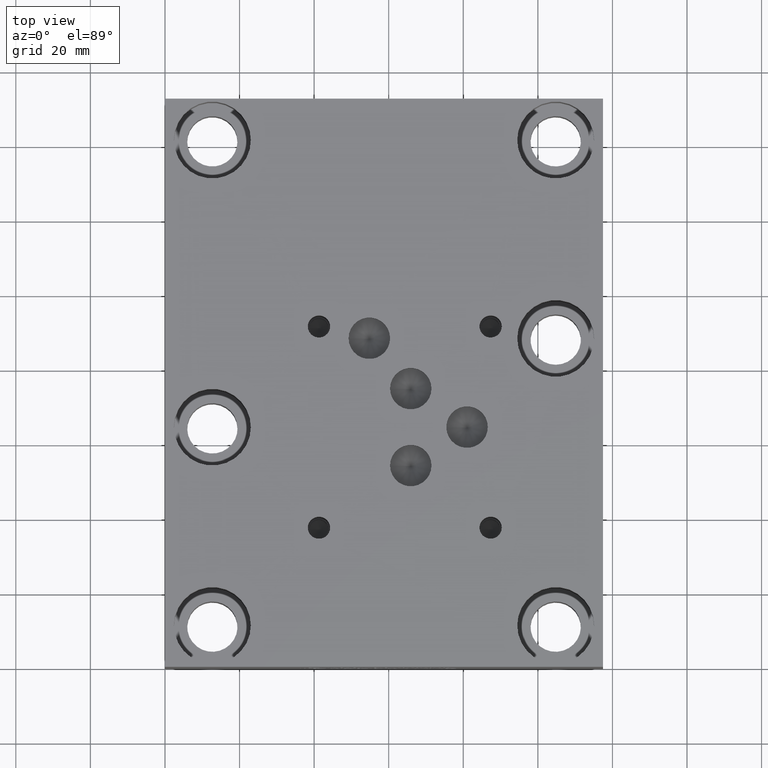
[diagram: clean part render]
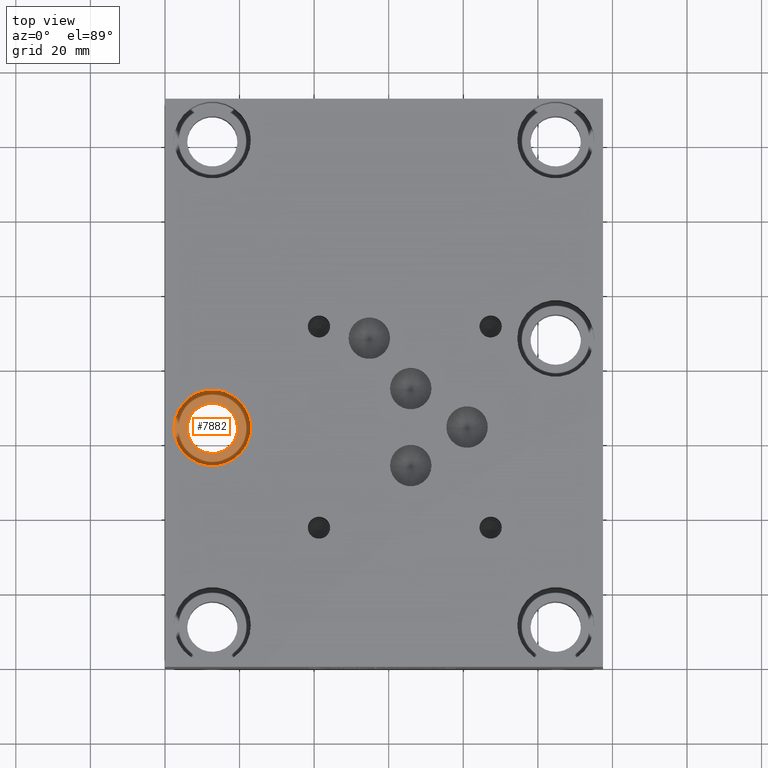
[diagram: same view with one face highlighted and labeled with its STEP entity id]
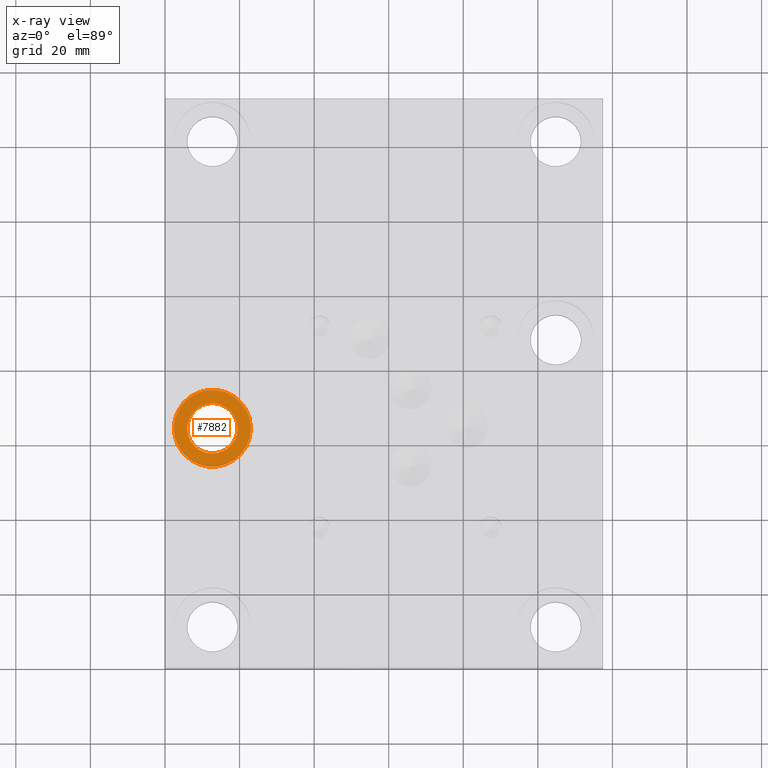
[diagram: x-ray of the same camera — body ghosted, the highlighted face saturated]
A machine part, top view. The second image highlights one B-rep face of the part: STEP entity #7882.
The next image is the same camera in x-ray: the body ghosted, the highlighted face saturated — about 0% of this face is hidden behind the body in this view.
In plain terms, the highlighted planar face has unit normal (0, 0, 1).
Its self-contained STEP definition (entity closure, byte-faithful):
#63=CIRCLE('',#8241,6.7437);
#65=CIRCLE('',#8244,10.3124);
#66=CIRCLE('',#8245,10.3124);
#67=CIRCLE('',#8246,6.7437);
#243=FACE_BOUND('',#1346,.T.);
#904=FACE_OUTER_BOUND('',#1345,.T.);
#1345=EDGE_LOOP('',(#6639,#6640));
#1346=EDGE_LOOP('',(#6641,#6642));
#3600=VERTEX_POINT('',#13193);
#3602=VERTEX_POINT('',#13196);
#3604=VERTEX_POINT('',#13202);
#3605=VERTEX_POINT('',#13203);
#4651=EDGE_CURVE('',#3600,#3602,#63,.T.);
#4654=EDGE_CURVE('',#3604,#3605,#65,.T.);
#4655=EDGE_CURVE('',#3605,#3604,#66,.T.);
#4656=EDGE_CURVE('',#3602,#3600,#67,.T.);
#6639=ORIENTED_EDGE('',*,*,#4654,.T.);
#6640=ORIENTED_EDGE('',*,*,#4655,.T.);
#6641=ORIENTED_EDGE('',*,*,#4656,.F.);
#6642=ORIENTED_EDGE('',*,*,#4651,.F.);
#7209=PLANE('',#8243);
#7882=ADVANCED_FACE('',(#904,#243),#7209,.T.);
#8241=AXIS2_PLACEMENT_3D('',#13197,#9686,#9687);
#8243=AXIS2_PLACEMENT_3D('',#13201,#9691,#9692);
#8244=AXIS2_PLACEMENT_3D('',#13204,#9693,#9694);
#8245=AXIS2_PLACEMENT_3D('',#13205,#9695,#9696);
#8246=AXIS2_PLACEMENT_3D('',#13206,#9697,#9698);
#9686=DIRECTION('center_axis',(0.,0.,1.));
#9687=DIRECTION('ref_axis',(1.,0.,0.));
#9691=DIRECTION('center_axis',(0.,0.,1.));
#9692=DIRECTION('ref_axis',(1.,0.,0.));
#9693=DIRECTION('center_axis',(0.,0.,1.));
#9694=DIRECTION('ref_axis',(1.,0.,0.));
#9695=DIRECTION('center_axis',(0.,0.,1.));
#9696=DIRECTION('ref_axis',(1.,0.,0.));
#9697=DIRECTION('center_axis',(0.,0.,1.));
#9698=DIRECTION('ref_axis',(1.,0.,0.));
#13193=CARTESIAN_POINT('',(8.66649121117297,69.6982200517678,19.05));
#13196=CARTESIAN_POINT('',(16.758908788827,58.9083299482322,19.05));
#13197=CARTESIAN_POINT('Origin',(12.7,64.29375,19.05));
#13201=CARTESIAN_POINT('Origin',(12.7,64.29375,19.05));
#13202=CARTESIAN_POINT('',(23.0124,64.29375,19.05));
#13203=CARTESIAN_POINT('',(2.3876,64.29375,19.05));
#13204=CARTESIAN_POINT('Origin',(12.7,64.29375,19.05));
#13205=CARTESIAN_POINT('Origin',(12.7,64.29375,19.05));
#13206=CARTESIAN_POINT('Origin',(12.7254,64.3128,19.05));